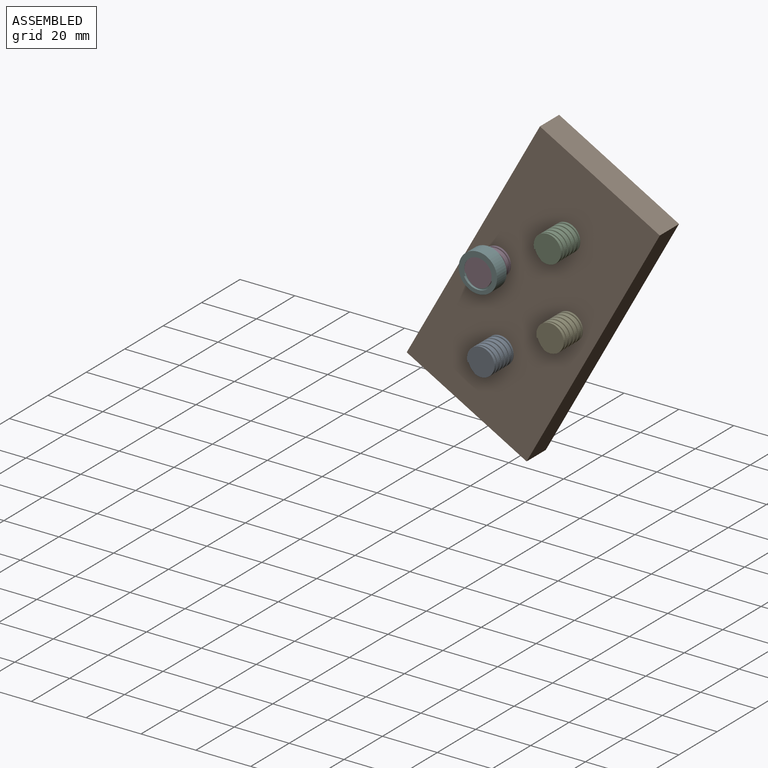
[diagram: assembled view]
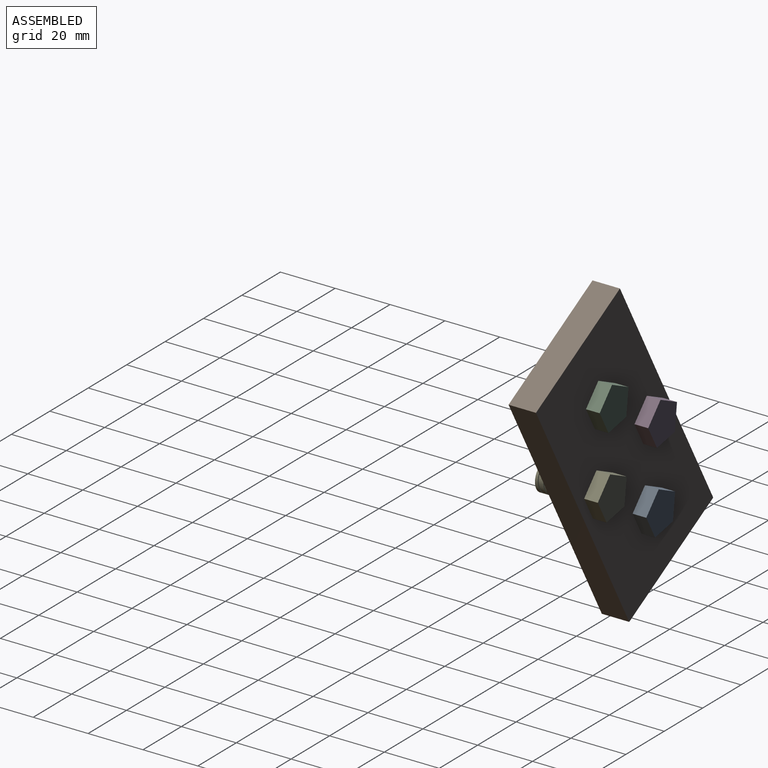
[diagram: assembled view, second angle]
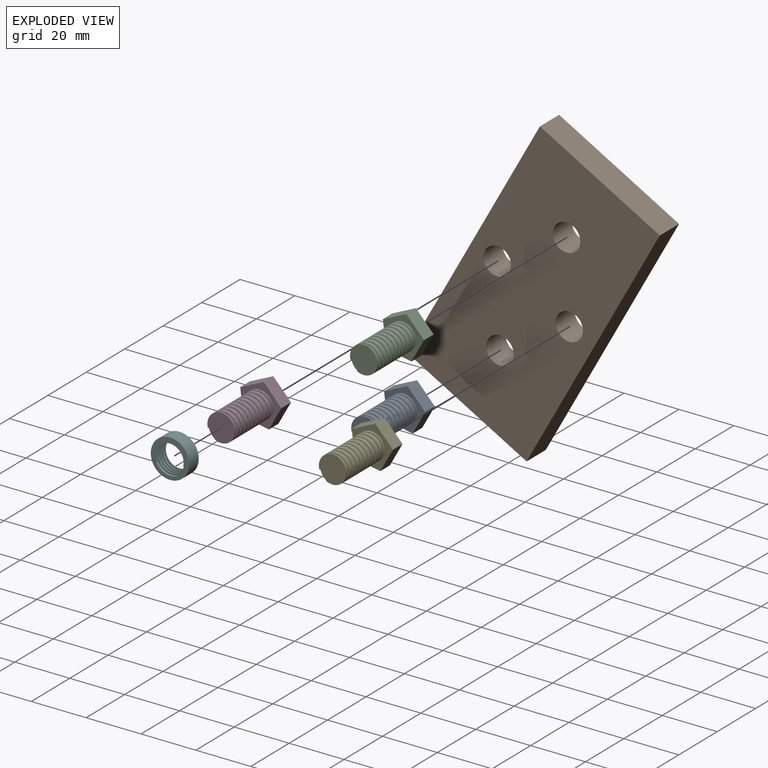
[diagram: exploded view]
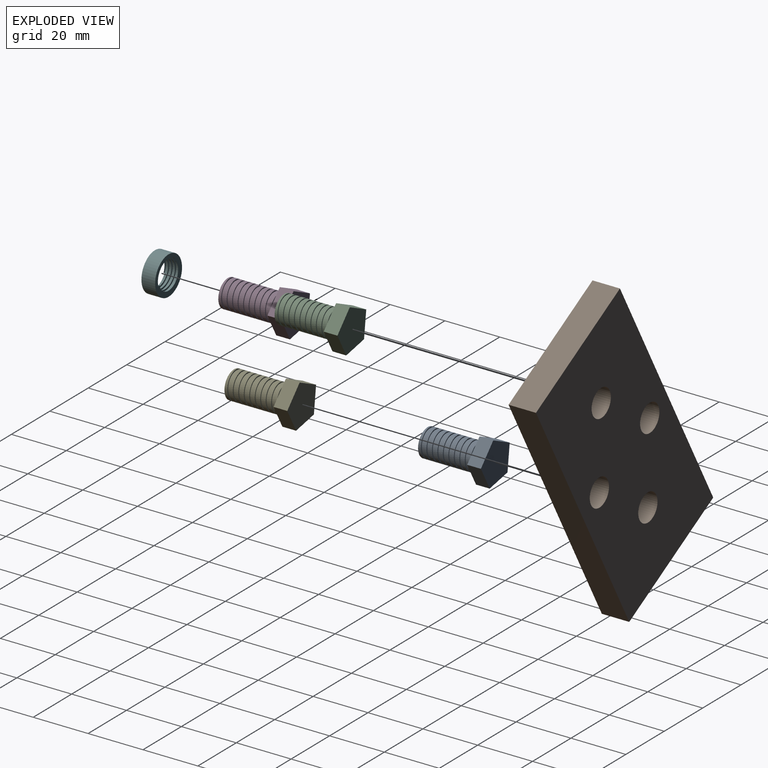
[diagram: exploded view, second angle]
ASSEMBLY  parts=6 mates=5
PART A: 15 faces, bbox 15.4x25.3x14.6 mm
  f0: cylinder r=5mm len=20mm, axis (0,-1,0), area 453.9mm2, adj f1,f8,f11,f12,f13,f14
  f1: plane 10.06x10.06mm, normal (0,1,0), area 77mm2, adj f0,f9,f11,f14
  f2: plane 7.64x5.55mm, normal (-0.59,0,0.81), area 47.2mm2, adj f3,f6,f7,f8
  f3: plane 8.98x5mm, normal (-0.95,0,-0.31), area 47.2mm2, adj f2,f4,f7,f8
  f4: plane 9.45x5mm, normal (0,0,-1), area 47.2mm2, adj f3,f5,f7,f8
  f5: plane 8.98x5mm, normal (0.95,0,-0.31), area 47.2mm2, adj f4,f6,f7,f8
  f6: plane 7.64x5.55mm, normal (0.59,0,0.81), area 47.2mm2, adj f2,f5,f7,f8
  f7: plane 15.28x14.53mm, normal (0,-1,0), area 153.5mm2, adj f2,f3,f4,f5,f6
  f8: plane 15.35x14.6mm, normal (0,1,0), area 73.3mm2, adj f0,f2,f3,f4,f5,f6,f10,f12
  f9: bspline ~20.52x10.65mm, area 149.3mm2, adj f1,f11,f12,f13,f14
  f10: bspline ~4.69x2.72mm, area 0.6mm2, adj f8,f12,f13
  f11: plane 0.39x0.26mm, normal (0,-0.06,1), area 0.1mm2, adj f0,f1,f9,f13
  f12: plane 0.77x0.52mm, normal (0,0.06,-1), area 0.3mm2, adj f0,f8,f9,f10,f13,f14
  f13: bspline ~20x12.44mm, area 118.5mm2, adj f0,f8,f9,f10,f11,f12
  f14: bspline ~20x12.44mm, area 115.4mm2, adj f0,f1,f9,f12
PART B: 10 faces, bbox 100x10x50 mm
  f0: plane 100x10mm, normal (0,0,-1), area 1000mm2, adj f1,f3,f8,f9
  f1: plane 50x10mm, normal (1,0,0), area 500mm2, adj f0,f2,f8,f9
  f2: plane 100x10mm, normal (0,0,1), area 1000mm2, adj f1,f3,f8,f9
  f3: plane 50x10mm, normal (-1,0,0), area 500mm2, adj f0,f2,f8,f9
  f4: cylinder r=5mm len=10mm, axis (0,1,0), area 314.2mm2, adj f8,f9
  f5: cylinder r=5mm len=10mm, axis (0,1,0), area 314.2mm2, adj f8,f9
  f6: cylinder r=5mm len=10mm, axis (0,1,0), area 314.2mm2, adj f8,f9
  f7: cylinder r=5mm len=10mm, axis (0,1,0), area 314.2mm2, adj f8,f9
  f8: plane 100x50mm, normal (0,-1,0), area 4685.8mm2, adj f0,f1,f2,f3,f4,f5,f6,f7
  f9: plane 100x50mm, normal (0,1,0), area 4685.8mm2, adj f0,f1,f2,f3,f4,f5,f6,f7
PART C: same geometry as A
PART D: same geometry as A
PART E: same geometry as A
PART F: 9 faces, bbox 6x14.1x14.1 mm
  f0: plane 14.08x14.08mm, normal (1,0,0), area 68mm2, adj f1,f2,f4,f6,f7
  f1: cylinder r=5mm len=10mm, axis (-1,0,0), area 42.8mm2, adj f0,f3,f5,f6,f7,f8
  f2: cylinder r=7mm len=14mm, axis (-1,0,0), area 219.9mm2, adj f0,f3
  f3: plane 14.09x14.09mm, normal (-1,0,0), area 68mm2, adj f1,f2,f4,f5,f8
  f4: bspline ~11.16x11.15mm, area 128mm2, adj f0,f3,f5,f6,f7,f8
  f5: plane 0.58x0.48mm, normal (0.04,0,-1), area 0.3mm2, adj f1,f3,f4,f7
  f6: plane 0.58x0.48mm, normal (-0.04,0,1), area 0.3mm2, adj f0,f1,f4,f8
  f7: bspline ~12.89x11.19mm, area 70mm2, adj f0,f1,f4,f5
  f8: bspline ~12.89x11.19mm, area 70mm2, adj f1,f3,f4,f6
PLACE A rot(axis=(0.51,0,-0.86),180deg) t=(61.65,-10.13,58.31)mm
PLACE B rot(axis=(0,1,0),119deg) t=(-30.97,-10.13,-15.76)mm fixed
PLACE C rot(axis=(0.51,0,-0.86),180deg) t=(85.93,-10.13,102.02)mm
PLACE D rot(axis=(0.51,0,-0.86),180deg) t=(60.67,-10.13,87.45)mm
PLACE E rot(axis=(0.51,0,-0.86),180deg) t=(86.9,-10.13,72.88)mm
PLACE F rot(axis=(0.13,0.13,0.98),91deg) t=(-83.64,-30.24,46.37)mm
MATE fastened C.f0 <-> B.f4  axis (0,-1,0) through (-18.83,-10.13,6.1)mm
MATE fastened E.f0 <-> B.f5  axis (0,-1,0) through (-17.86,-10.13,-23.04)mm
MATE fastened A.f0 <-> B.f7  axis (0,-1,0) through (-43.11,-10.13,-37.61)mm
MATE fastened D.f0 <-> B.f6  axis (0,-1,0) through (-44.08,-10.13,-8.47)mm
MATE cylindrical F.f1 <-> D.f0  axis (0,-1,0) through (-44.08,-30.24,-8.47)mm
